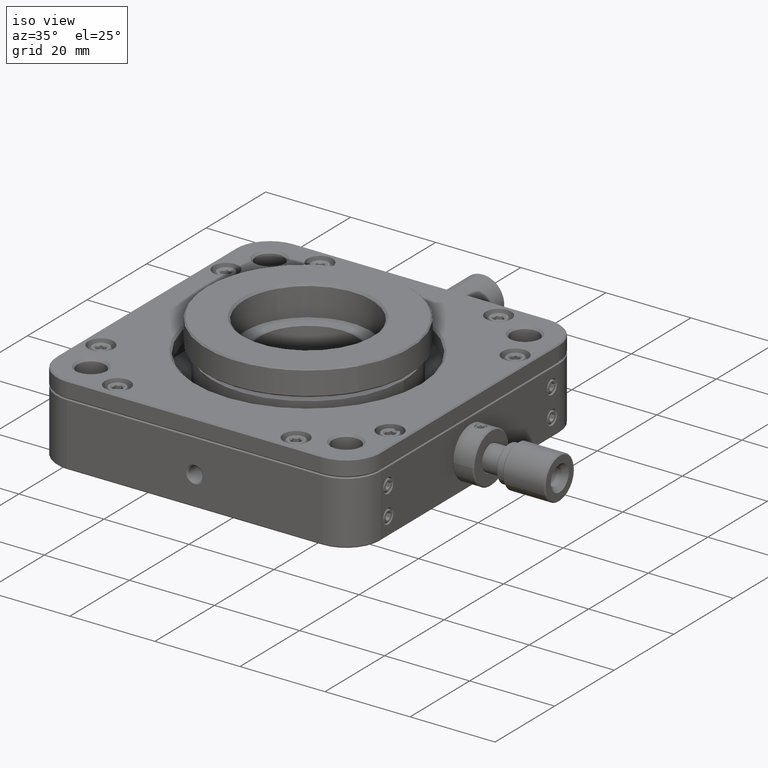
[diagram: clean part render]
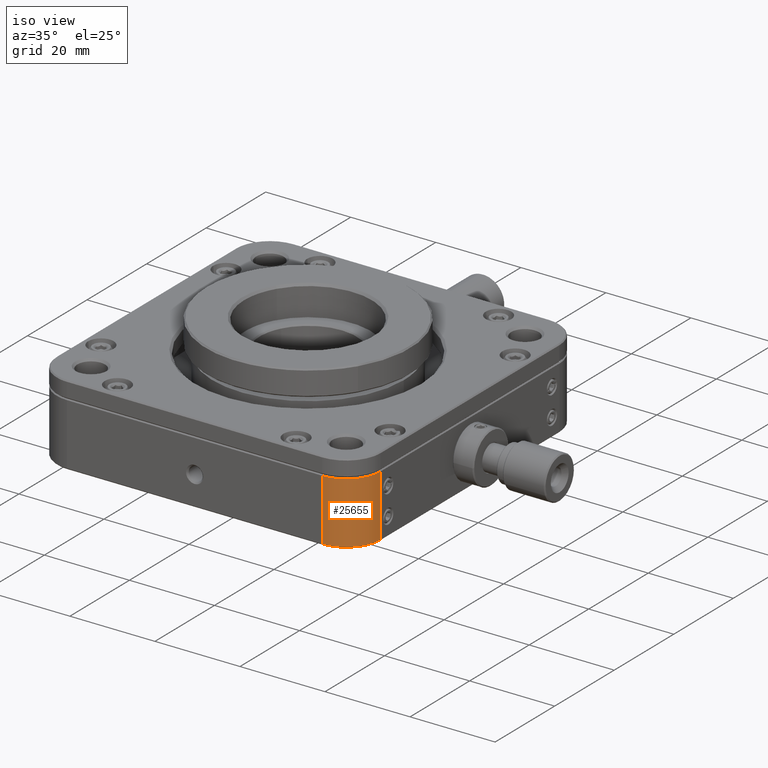
[diagram: same view with one face highlighted and labeled with its STEP entity id]
A machine part, iso view. The second image highlights one B-rep face of the part: STEP entity #25655.
In plain terms, the highlighted face is a freeform B-spline surface patch.
Its self-contained STEP definition (entity closure, byte-faithful):
#112 = ORIENTED_EDGE ( 'NONE', *, *, #9237, .F. ) ;
#334 = CARTESIAN_POINT ( 'NONE',  ( 30.00000000000000000, -38.10000000000000142, 7.250000000000000000 ) ) ;
#389 = B_SPLINE_CURVE_WITH_KNOTS ( 'NONE', 1,
 ( #334, #14501 ),
 .UNSPECIFIED., .F., .F.,
 ( 2, 2 ),
 ( 0.000000000000000000, 1.000000000000000000 ),
 .UNSPECIFIED. ) ;
#1002 = VERTEX_POINT ( 'NONE', #25459 ) ;
#1652 = ORIENTED_EDGE ( 'NONE', *, *, #2221, .T. ) ;
#1720 = EDGE_CURVE ( 'NONE', #1002, #18210, #23085, .T. ) ;
#2216 = CARTESIAN_POINT ( 'NONE',  ( 38.10000000000000142, -30.00000000000000000, -7.250000000000000000 ) ) ;
#2221 = EDGE_CURVE ( 'NONE', #15279, #1002, #25243, .T. ) ;
#2770 = FACE_OUTER_BOUND ( 'NONE', #15315, .T. ) ;
#4519 = VERTEX_POINT ( 'NONE', #13535 ) ;
#4661 = CARTESIAN_POINT ( 'NONE',  ( 30.00000000000000000, -38.10000000000000142, 7.250000000000000000 ) ) ;
#5052 =( BOUNDED_CURVE ( )  B_SPLINE_CURVE ( 3, ( #22806, #6453, #16195, #24423 ),
 .UNSPECIFIED., .F., .F. ) 
 B_SPLINE_CURVE_WITH_KNOTS ( ( 4, 4 ),
 ( 0.000000000000000000, 1.000000000000000000 ),
 .UNSPECIFIED. ) 
 CURVE ( )  GEOMETRIC_REPRESENTATION_ITEM ( )  RATIONAL_B_SPLINE_CURVE ( ( 1.000000000000000000, 0.8047378541243649375, 0.8047378541243649375, 1.000000000000000000 ) ) 
 REPRESENTATION_ITEM ( '' )  );
#5843 = CARTESIAN_POINT ( 'NONE',  ( 38.10000000000000142, -30.00000000000000000, 7.250000000000000000 ) ) ;
#6453 = CARTESIAN_POINT ( 'NONE',  ( 38.09999999999998721, -34.74487014477795555, -7.249999999999978684 ) ) ;
#7029 = ORIENTED_EDGE ( 'NONE', *, *, #26529, .T. ) ;
#7438 = CARTESIAN_POINT ( 'NONE',  ( 34.74487014477792002, -38.09999999999999432, 7.249999999999968026 ) ) ;
#9211 = CARTESIAN_POINT ( 'NONE',  ( 38.09999999999999432, -34.74487014477792712, 7.249999999999968026 ) ) ;
#9237 = EDGE_CURVE ( 'NONE', #15279, #4519, #5052, .T. ) ;
#10852 = CARTESIAN_POINT ( 'NONE',  ( 38.10000000000000142, -30.00000000000000000, 7.250000000000000000 ) ) ;
#11620 = CARTESIAN_POINT ( 'NONE',  ( 38.09999999999999432, -34.74487014477792002, 7.249999999999968026 ) ) ;
#12788 = CARTESIAN_POINT ( 'NONE',  ( 38.10000000000000142, -30.00000000000000000, -7.250000000000000000 ) ) ;
#12904 = CARTESIAN_POINT ( 'NONE',  ( 38.10000000000000142, -30.00000000000000000, -7.250000000000000000 ) ) ;
#13298 = CARTESIAN_POINT ( 'NONE',  ( 34.74487014477792712, -38.09999999999999432, 7.249999999999968026 ) ) ;
#13398 = CARTESIAN_POINT ( 'NONE',  ( 38.10000000000000142, -30.00000000000000000, 7.250000000000000000 ) ) ;
#13535 = CARTESIAN_POINT ( 'NONE',  ( 30.00000000000000000, -38.10000000000000142, -7.250000000000000000 ) ) ;
#14501 = CARTESIAN_POINT ( 'NONE',  ( 30.00000000000000000, -38.10000000000000142, -7.250000000000000000 ) ) ;
#15279 = VERTEX_POINT ( 'NONE', #12788 ) ;
#15315 = EDGE_LOOP ( 'NONE', ( #7029, #112, #1652, #23630 ) ) ;
#16195 = CARTESIAN_POINT ( 'NONE',  ( 34.74487014477795555, -38.09999999999998721, -7.249999999999978684 ) ) ;
#17477 = CARTESIAN_POINT ( 'NONE',  ( 38.09999999999999432, -34.74487014477792712, -7.249999999999981348 ) ) ;
#18210 = VERTEX_POINT ( 'NONE', #4661 ) ;
#19103 = CARTESIAN_POINT ( 'NONE',  ( 34.74487014477792712, -38.09999999999999432, -7.249999999999981348 ) ) ;
#19626 =( BOUNDED_SURFACE ( )  B_SPLINE_SURFACE ( 3, 1, ( 
 ( #10852, #12904 ),
 ( #9211, #17477 ),
 ( #13298, #19103 ),
 ( #23162, #25700 ) ),
 .UNSPECIFIED., .F., .F., .F. ) 
 B_SPLINE_SURFACE_WITH_KNOTS ( ( 4, 4 ),
 ( 2, 2 ),
 ( 0.000000000000000000, 1.000000000000000000 ),
 ( 0.000000000000000000, 1.000000000000000000 ),
 .UNSPECIFIED. ) 
 GEOMETRIC_REPRESENTATION_ITEM ( )  RATIONAL_B_SPLINE_SURFACE ( (
 ( 1.000000000000000000, 1.000000000000000000),
 ( 0.8047378541243649375, 0.8047378541243649375),
 ( 0.8047378541243649375, 0.8047378541243649375),
 ( 1.000000000000000000, 1.000000000000000000) ) ) 
 REPRESENTATION_ITEM ( '' )  SURFACE ( )  );
#22026 = CARTESIAN_POINT ( 'NONE',  ( 30.00000000000000000, -38.10000000000000142, 7.250000000000000000 ) ) ;
#22806 = CARTESIAN_POINT ( 'NONE',  ( 38.10000000000000142, -30.00000000000000000, -7.250000000000000000 ) ) ;
#23085 =( BOUNDED_CURVE ( )  B_SPLINE_CURVE ( 3, ( #13398, #11620, #7438, #22026 ),
 .UNSPECIFIED., .F., .T. ) 
 B_SPLINE_CURVE_WITH_KNOTS ( ( 4, 4 ),
 ( 0.000000000000000000, 1.000000000000000000 ),
 .UNSPECIFIED. ) 
 CURVE ( )  GEOMETRIC_REPRESENTATION_ITEM ( )  RATIONAL_B_SPLINE_CURVE ( ( 1.000000000000000000, 0.8047378541243649375, 0.8047378541243649375, 1.000000000000000000 ) ) 
 REPRESENTATION_ITEM ( '' )  );
#23162 = CARTESIAN_POINT ( 'NONE',  ( 30.00000000000000000, -38.10000000000000142, 7.250000000000000000 ) ) ;
#23630 = ORIENTED_EDGE ( 'NONE', *, *, #1720, .T. ) ;
#24423 = CARTESIAN_POINT ( 'NONE',  ( 30.00000000000000000, -38.10000000000000142, -7.250000000000000000 ) ) ;
#25243 = B_SPLINE_CURVE_WITH_KNOTS ( 'NONE', 1,
 ( #2216, #5843 ),
 .UNSPECIFIED., .F., .F.,
 ( 2, 2 ),
 ( 0.000000000000000000, 1.000000000000000000 ),
 .UNSPECIFIED. ) ;
#25459 = CARTESIAN_POINT ( 'NONE',  ( 38.10000000000000142, -30.00000000000000000, 7.250000000000000000 ) ) ;
#25655 = ADVANCED_FACE ( 'NONE', ( #2770 ), #19626, .T. ) ;
#25700 = CARTESIAN_POINT ( 'NONE',  ( 30.00000000000000000, -38.10000000000000142, -7.250000000000000000 ) ) ;
#26529 = EDGE_CURVE ( 'NONE', #18210, #4519, #389, .T. ) ;